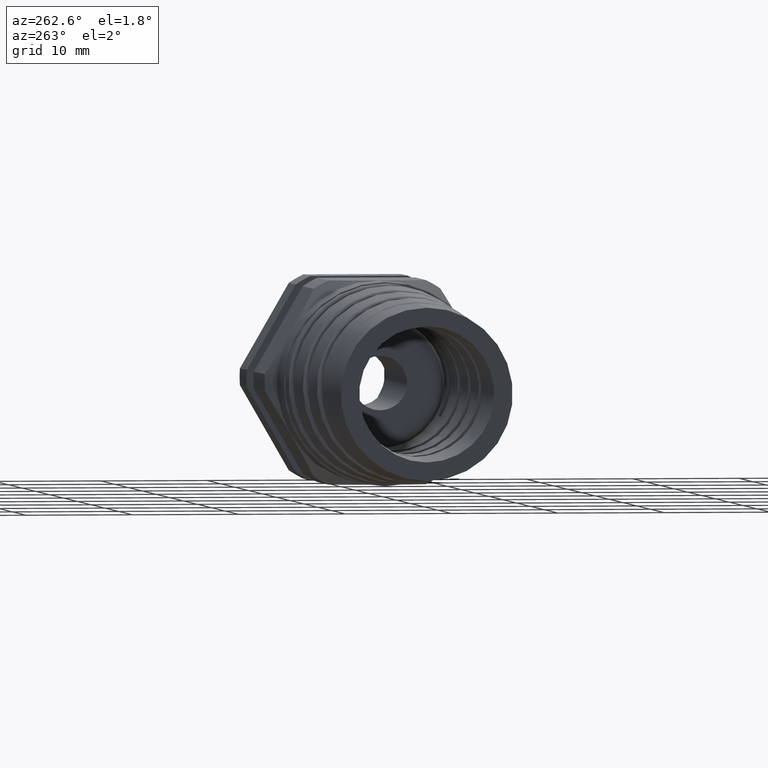
[diagram: clean part render]
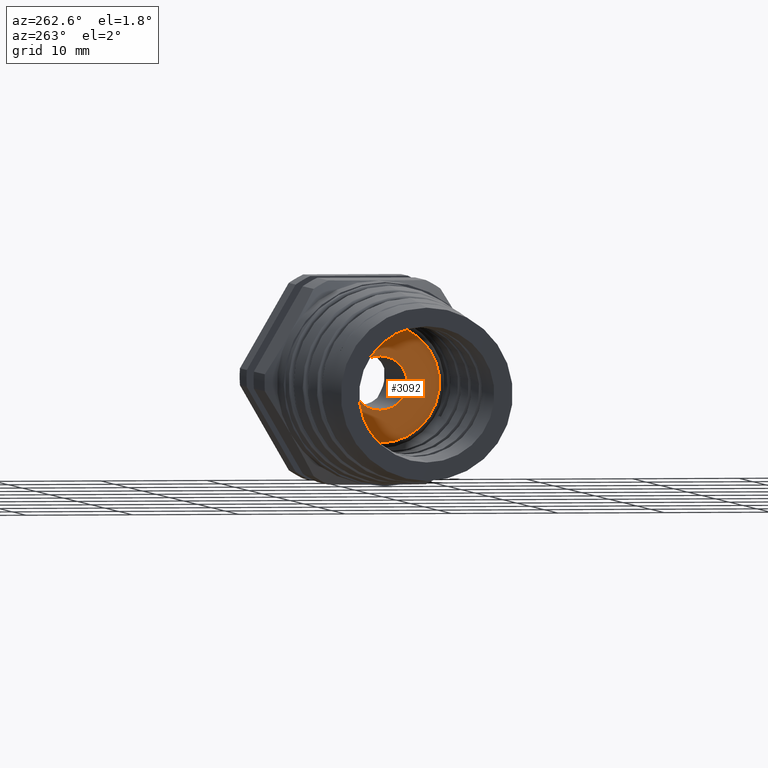
[diagram: same view with one face highlighted and labeled with its STEP entity id]
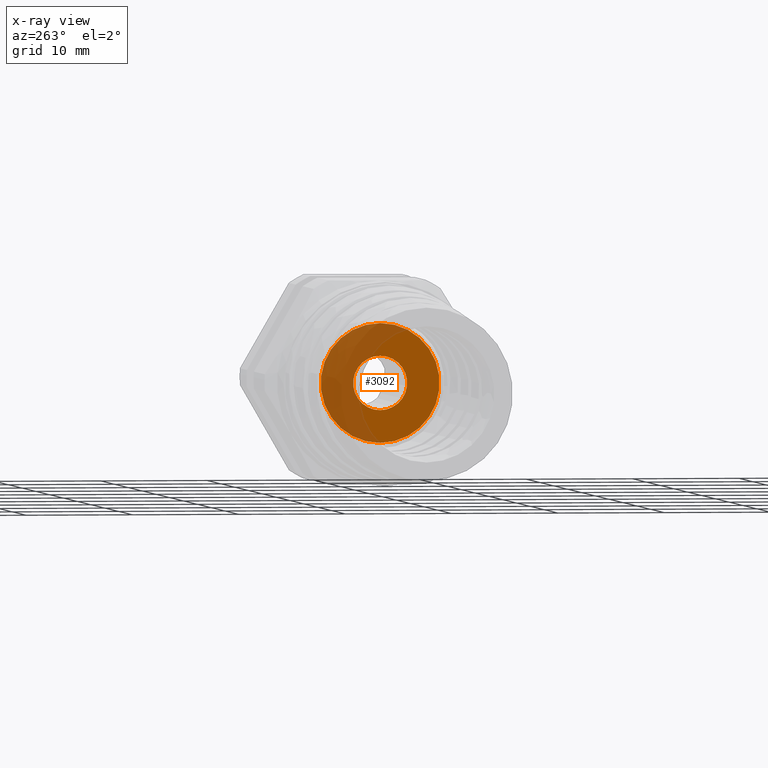
[diagram: x-ray of the same camera — body ghosted, the highlighted face saturated]
A machine part, auxiliary view. The second image highlights one B-rep face of the part: STEP entity #3092.
The next image is the same camera in x-ray: the body ghosted, the highlighted face saturated — about 48% of this face is hidden behind the body in this view.
In plain terms, the highlighted planar face has unit normal (-1, 0, 0).
Its self-contained STEP definition (entity closure, byte-faithful):
#1669 = DIRECTION ( 'NONE',  ( 0.0000000000000000000, 0.0000000000000000000, -1.000000000000000000 ) ) ;
#1670 = DIRECTION ( 'NONE',  ( 1.000000000000000000, 0.0000000000000000000, 0.0000000000000000000 ) ) ;
#1671 = CARTESIAN_POINT ( 'NONE',  ( -1.109999999999999900, 0.0000000000000000000, 0.0000000000000000000 ) ) ;
#1672 = AXIS2_PLACEMENT_3D ( 'NONE', #1671, #1670, #1669 ) ;
#1673 = CIRCLE ( 'NONE', #1672, 0.1000000000000000100 ) ;
#1674 = CARTESIAN_POINT ( 'NONE',  ( -1.109999999999999900, 0.0000000000000000000, -0.1000000000000000100 ) ) ;
#1684 = CARTESIAN_POINT ( 'NONE',  ( -1.109999999999999900, 1.224646799147353300E-017, 0.1000000000000000100 ) ) ;
#1955 = CARTESIAN_POINT ( 'NONE',  ( -1.109999999999999900, 2.816687638038912300E-017, 0.2199999999999999700 ) ) ;
#1956 = CARTESIAN_POINT ( 'NONE',  ( -1.109999999999999900, 0.0000000000000000000, -0.2199999999999999700 ) ) ;
#1968 = DIRECTION ( 'NONE',  ( 0.0000000000000000000, 0.0000000000000000000, -1.000000000000000000 ) ) ;
#1969 = DIRECTION ( 'NONE',  ( 1.000000000000000000, 0.0000000000000000000, 0.0000000000000000000 ) ) ;
#1970 = CARTESIAN_POINT ( 'NONE',  ( -1.109999999999999900, 0.0000000000000000000, 0.0000000000000000000 ) ) ;
#1971 = AXIS2_PLACEMENT_3D ( 'NONE', #1970, #1969, #1968 ) ;
#1972 = CIRCLE ( 'NONE', #1971, 0.1000000000000000100 ) ;
#1988 = DIRECTION ( 'NONE',  ( 0.0000000000000000000, 0.0000000000000000000, -1.000000000000000000 ) ) ;
#1989 = DIRECTION ( 'NONE',  ( 1.000000000000000000, 0.0000000000000000000, 0.0000000000000000000 ) ) ;
#1990 = CARTESIAN_POINT ( 'NONE',  ( -1.109999999999999900, 0.0000000000000000000, 0.0000000000000000000 ) ) ;
#1991 = AXIS2_PLACEMENT_3D ( 'NONE', #1990, #1989, #1988 ) ;
#1992 = CIRCLE ( 'NONE', #1991, 0.2199999999999999700 ) ;
#1993 = DIRECTION ( 'NONE',  ( 0.0000000000000000000, 0.0000000000000000000, 1.000000000000000000 ) ) ;
#1994 = DIRECTION ( 'NONE',  ( -1.000000000000000000, 0.0000000000000000000, 0.0000000000000000000 ) ) ;
#1995 = CARTESIAN_POINT ( 'NONE',  ( -1.109999999999999900, 0.2199999999999999700, 0.0000000000000000000 ) ) ;
#1996 = AXIS2_PLACEMENT_3D ( 'NONE', #1995, #1994, #1993 ) ;
#1997 = FACE_OUTER_BOUND ( 'NONE', #3087, .T. ) ;
#1998 = FACE_BOUND ( 'NONE', #3086, .T. ) ;
#2003 = PLANE ( 'NONE',  #1996 ) ;
#2006 = DIRECTION ( 'NONE',  ( 0.0000000000000000000, 0.0000000000000000000, -1.000000000000000000 ) ) ;
#2007 = DIRECTION ( 'NONE',  ( 1.000000000000000000, 0.0000000000000000000, 0.0000000000000000000 ) ) ;
#2008 = AXIS2_PLACEMENT_3D ( 'NONE', #2014, #2007, #2006 ) ;
#2009 = CIRCLE ( 'NONE', #2008, 0.2199999999999999700 ) ;
#2014 = CARTESIAN_POINT ( 'NONE',  ( -1.109999999999999900, 0.0000000000000000000, 0.0000000000000000000 ) ) ;
#2856 = VERTEX_POINT ( 'NONE', #1684 ) ;
#2861 = VERTEX_POINT ( 'NONE', #1674 ) ;
#2864 = EDGE_CURVE ( 'NONE', #2856, #2861, #1673, .T. ) ;
#3052 = ORIENTED_EDGE ( 'NONE', *, *, #3094, .F. ) ;
#3055 = ORIENTED_EDGE ( 'NONE', *, *, #3084, .F. ) ;
#3065 = EDGE_CURVE ( 'NONE', #2861, #2856, #1972, .T. ) ;
#3071 = VERTEX_POINT ( 'NONE', #1956 ) ;
#3072 = VERTEX_POINT ( 'NONE', #1955 ) ;
#3084 = EDGE_CURVE ( 'NONE', #3071, #3072, #2009, .T. ) ;
#3086 = EDGE_LOOP ( 'NONE', ( #3095, #3091 ) ) ;
#3087 = EDGE_LOOP ( 'NONE', ( #3055, #3052 ) ) ;
#3091 = ORIENTED_EDGE ( 'NONE', *, *, #2864, .T. ) ;
#3092 = ADVANCED_FACE ( 'NONE', ( #1998, #1997 ), #2003, .T. ) ;
#3094 = EDGE_CURVE ( 'NONE', #3072, #3071, #1992, .T. ) ;
#3095 = ORIENTED_EDGE ( 'NONE', *, *, #3065, .T. ) ;